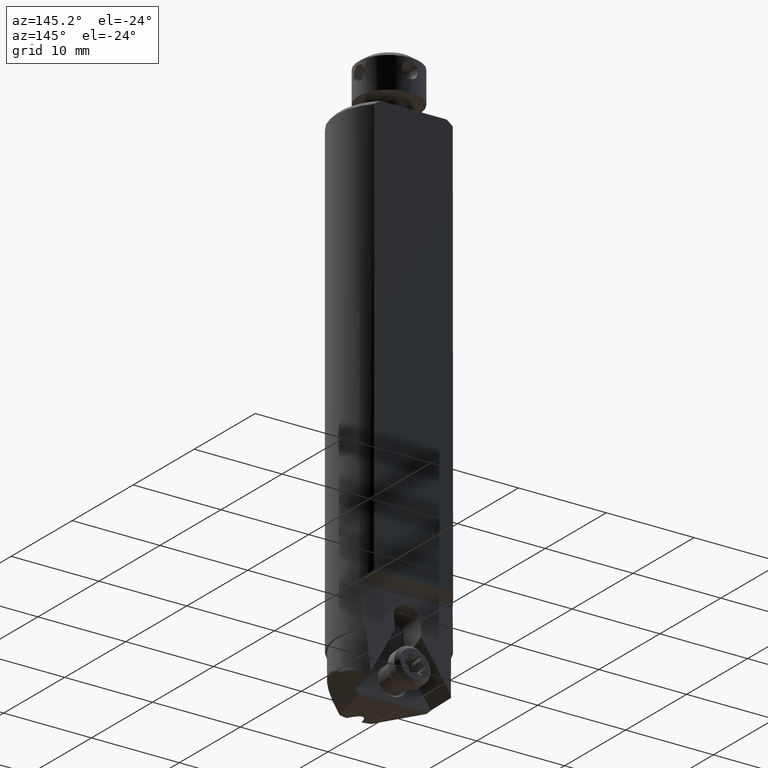
[diagram: clean part render]
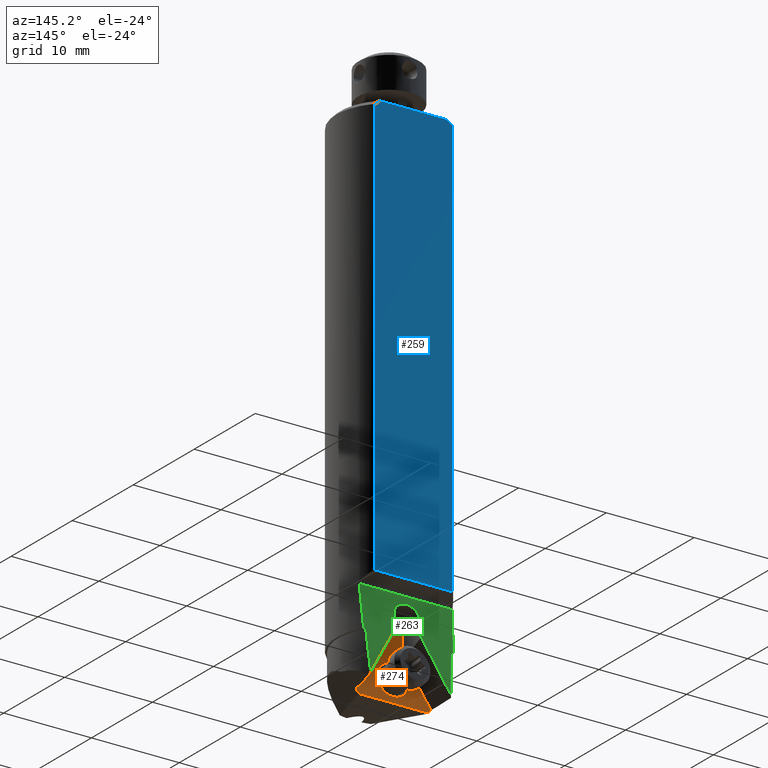
[diagram: same view with three faces highlighted in distinct colors, each labeled with its STEP entity id]
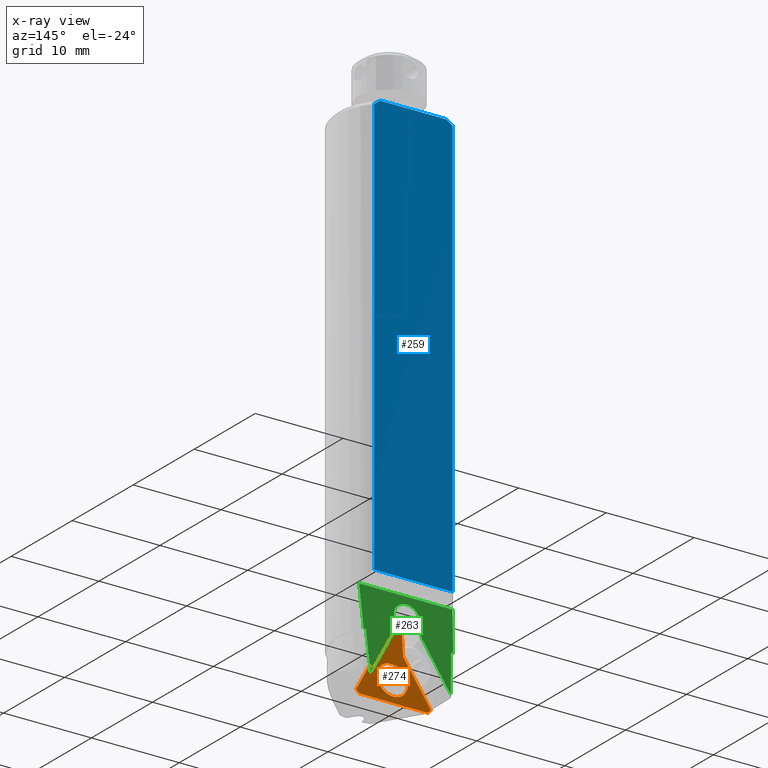
[diagram: x-ray of the same camera — body ghosted, the three highlighted faces saturated]
A machine part, auxiliary view with three faces highlighted in distinct colors.
The next image is the same camera in x-ray (body ghosted, the three faces saturated) — at least one of them is partly hidden behind the body in this view.
Their STEP definitions:

[orange] entity #274 — the highlighted planar face has unit normal (0, 0.9962, 0.0872).
#274=ADVANCED_FACE('',(#376,#377),#360,.T.);
#360=PLANE('',#1723);
#376=FACE_BOUND('',#403,.T.);
#377=FACE_BOUND('',#404,.T.);
#403=EDGE_LOOP('',(#780,#781,#782,#783,#784,#785,#786,#787));
#404=EDGE_LOOP('',(#788,#789));
#516=LINE('',#2614,#612);
#517=LINE('',#2619,#613);
#518=LINE('',#2621,#614);
#519=LINE('',#2623,#615);
#520=LINE('',#2625,#616);
#521=LINE('',#2627,#617);
#522=LINE('',#2629,#618);
#612=VECTOR('',#2009,1.);
#613=VECTOR('',#2012,1.);
#614=VECTOR('',#2013,1.);
#615=VECTOR('',#2014,1.);
#616=VECTOR('',#2015,1.);
#617=VECTOR('',#2016,1.);
#618=VECTOR('',#2017,1.);
#780=ORIENTED_EDGE('',*,*,#1356,.T.);
#781=ORIENTED_EDGE('',*,*,#1357,.F.);
#782=ORIENTED_EDGE('',*,*,#1358,.T.);
#783=ORIENTED_EDGE('',*,*,#1359,.F.);
#784=ORIENTED_EDGE('',*,*,#1360,.T.);
#785=ORIENTED_EDGE('',*,*,#1361,.T.);
#786=ORIENTED_EDGE('',*,*,#1362,.T.);
#787=ORIENTED_EDGE('',*,*,#1363,.F.);
#788=ORIENTED_EDGE('',*,*,#1355,.F.);
#789=ORIENTED_EDGE('',*,*,#1364,.F.);
#1192=VERTEX_POINT('',#2609);
#1193=VERTEX_POINT('',#2611);
#1194=VERTEX_POINT('',#2615);
#1195=VERTEX_POINT('',#2616);
#1196=VERTEX_POINT('',#2618);
#1197=VERTEX_POINT('',#2620);
#1198=VERTEX_POINT('',#2622);
#1199=VERTEX_POINT('',#2624);
#1200=VERTEX_POINT('',#2626);
#1201=VERTEX_POINT('',#2628);
#1355=EDGE_CURVE('',#1193,#1192,#1535,.T.);
#1356=EDGE_CURVE('',#1194,#1195,#516,.T.);
#1357=EDGE_CURVE('',#1196,#1195,#1536,.T.);
#1358=EDGE_CURVE('',#1196,#1197,#517,.T.);
#1359=EDGE_CURVE('',#1198,#1197,#518,.T.);
#1360=EDGE_CURVE('',#1198,#1199,#519,.T.);
#1361=EDGE_CURVE('',#1199,#1200,#520,.T.);
#1362=EDGE_CURVE('',#1200,#1201,#521,.T.);
#1363=EDGE_CURVE('',#1194,#1201,#522,.T.);
#1364=EDGE_CURVE('',#1192,#1193,#1537,.T.);
#1535=CIRCLE('',#1719,1.750000000004);
#1536=CIRCLE('',#1721,1.399999999996);
#1537=CIRCLE('',#1722,1.750000000004);
#1719=AXIS2_PLACEMENT_3D('',#2612,#2005,#2006);
#1721=AXIS2_PLACEMENT_3D('',#2617,#2010,#2011);
#1722=AXIS2_PLACEMENT_3D('',#2630,#2018,#2019);
#1723=AXIS2_PLACEMENT_3D('',#2631,#2020,#2021);
#2005=DIRECTION('',(0.,0.996194698091544,0.0871557427499638));
#2006=DIRECTION('',(0.,-0.0871557427499638,0.996194698091546));
#2009=DIRECTION('',(-6.17648606159406E-13,-0.0871557427469308,0.996194698091809));
#2010=DIRECTION('',(0.,-0.996194698092414,-0.0871557427400212));
#2011=DIRECTION('',(1.,3.72094313447472E-13,-4.25255069254958E-12));
#2012=DIRECTION('',(5.40968392206515E-13,0.0871557427227124,-0.996194698093928));
#2013=DIRECTION('',(-0.499999999998817,-0.0754790873049225,0.862729915663529));
#2014=DIRECTION('',(-0.705757556810199,0.0617457855328199,-0.705757556795699));
#2015=DIRECTION('',(-1.,0.,0.));
#2016=DIRECTION('',(-0.705757556812686,-0.0617457854210988,0.705757556802986));
#2017=DIRECTION('',(-0.500000000000173,0.0754790873059459,-0.862729915662653));
#2018=DIRECTION('',(0.,0.996194698091544,0.0871557427499638));
#2019=DIRECTION('',(0.,0.0871557427499638,-0.996194698091546));
#2020=DIRECTION('',(0.,0.996194698091747,0.0871557427476441));
#2021=DIRECTION('',(1.,0.,0.));
#2609=CARTESIAN_POINT('',(0.,0.7079039266518,-58.85757781715));
#2611=CARTESIAN_POINT('',(0.,0.4028588270262,-55.37089637382));
#2612=CARTESIAN_POINT('',(0.,0.555381376839,-57.11423709549));
#2614=CARTESIAN_POINT('',(-1.399999999999,0.3045793339473,-54.24755662761));
#2615=CARTESIAN_POINT('',(-1.399999999999,0.3045793339473,-54.24755662761));
#2616=CARTESIAN_POINT('',(-1.399999999996,0.1021715145569,-51.93402466542));
#2617=CARTESIAN_POINT('',(0.,0.1021715145563,-51.93402466541));
#2618=CARTESIAN_POINT('',(1.399999999999,0.1021715145569,-51.93402466542));
#2619=CARTESIAN_POINT('',(1.399999999999,0.1021715145569,-51.93402466542));
#2620=CARTESIAN_POINT('',(1.4,0.3045793338955,-54.24755662762));
#2621=CARTESIAN_POINT('',(4.26711323372,0.7373935140587,-59.19464534428));
#2622=CARTESIAN_POINT('',(4.26711323365155,0.737393514004378,-59.1946453443407));
#2623=CARTESIAN_POINT('',(4.26711323372,0.7373935140587,-59.19464534428));
#2624=CARTESIAN_POINT('',(3.9,0.7695117602989,-59.56175857799));
#2625=CARTESIAN_POINT('',(3.9,0.7695117602989,-59.56175857799));
#2626=CARTESIAN_POINT('',(-3.9,0.7695117602989,-59.56175857799));
#2627=CARTESIAN_POINT('',(-3.9,0.7695117602989,-59.56175857799));
#2628=CARTESIAN_POINT('',(-4.26711323372529,0.737393514114638,-59.1946453442684));
#2629=CARTESIAN_POINT('',(-1.399999999999,0.3045793339473,-54.24755662761));
#2630=CARTESIAN_POINT('',(0.,0.555381376839,-57.11423709549));
#2631=CARTESIAN_POINT('',(0.,0.3748068163156,-55.0502604241));

[blue] entity #259 — the highlighted planar face has unit normal (0, 1, 0).
#128=FACE_OUTER_BOUND('',#388,.T.);
#215=B_SPLINE_CURVE_WITH_KNOTS('',3,(#2394,#2395,#2396,#2397,#2398,#2399),
 .UNSPECIFIED.,.F.,.F.,(4,1,1,4),(0.,0.3333333333333,0.6666666666667,1.),
 .UNSPECIFIED.);
#216=B_SPLINE_CURVE_WITH_KNOTS('',3,(#2400,#2401,#2402,#2403,#2404,#2405),
 .UNSPECIFIED.,.F.,.F.,(4,1,1,4),(0.,0.3333333333333,0.6666666666667,1.),
 .UNSPECIFIED.);
#259=ADVANCED_FACE('',(#128),#352,.T.);
#352=PLANE('',#1685);
#388=EDGE_LOOP('',(#683,#684,#685,#686,#687,#688));
#485=LINE('',#2383,#581);
#486=LINE('',#2391,#582);
#487=LINE('',#2407,#583);
#488=LINE('',#2409,#584);
#581=VECTOR('',#1898,1.);
#582=VECTOR('',#1907,1.);
#583=VECTOR('',#1908,1.);
#584=VECTOR('',#1909,1.);
#683=ORIENTED_EDGE('',*,*,#1293,.T.);
#684=ORIENTED_EDGE('',*,*,#1294,.T.);
#685=ORIENTED_EDGE('',*,*,#1289,.F.);
#686=ORIENTED_EDGE('',*,*,#1295,.T.);
#687=ORIENTED_EDGE('',*,*,#1296,.T.);
#688=ORIENTED_EDGE('',*,*,#1297,.T.);
#1144=VERTEX_POINT('',#2380);
#1145=VERTEX_POINT('',#2382);
#1149=VERTEX_POINT('',#2392);
#1150=VERTEX_POINT('',#2393);
#1151=VERTEX_POINT('',#2406);
#1152=VERTEX_POINT('',#2408);
#1289=EDGE_CURVE('',#1145,#1144,#485,.T.);
#1293=EDGE_CURVE('',#1149,#1150,#486,.T.);
#1294=EDGE_CURVE('',#1150,#1144,#215,.T.);
#1295=EDGE_CURVE('',#1145,#1151,#216,.T.);
#1296=EDGE_CURVE('',#1151,#1152,#487,.T.);
#1297=EDGE_CURVE('',#1152,#1149,#488,.T.);
#1685=AXIS2_PLACEMENT_3D('',#2410,#1910,#1911);
#1898=DIRECTION('',(-1.,0.,0.));
#1907=DIRECTION('',(0.,-3.108511716886E-14,1.));
#1908=DIRECTION('',(0.,2.493886871726E-14,-1.));
#1909=DIRECTION('',(-1.,0.,0.));
#1910=DIRECTION('',(0.,1.,0.));
#1911=DIRECTION('',(0.,0.,1.));
#2380=CARTESIAN_POINT('',(-3.774917217635,4.,4.144832625267E-14));
#2382=CARTESIAN_POINT('',(3.774917217635,4.,0.));
#2383=CARTESIAN_POINT('',(3.774917217635,4.,0.));
#2391=CARTESIAN_POINT('',(-4.472135955,4.000000000001,-48.1874439439));
#2392=CARTESIAN_POINT('',(-4.4721359549973,4.000000000001,-48.1874439439049));
#2393=CARTESIAN_POINT('',(-4.472135955,4.,-0.5));
#2394=CARTESIAN_POINT('',(-4.472135955,4.,-0.5));
#2395=CARTESIAN_POINT('',(-4.393661086177,4.,-0.4415082862622));
#2396=CARTESIAN_POINT('',(-4.23744257558,4.,-0.3264448948321));
#2397=CARTESIAN_POINT('',(-4.006946224232,4.,-0.1609865209763));
#2398=CARTESIAN_POINT('',(-3.852262418119,4.,-0.05308576891074));
#2399=CARTESIAN_POINT('',(-3.774917217635,4.,4.144832625267E-14));
#2400=CARTESIAN_POINT('',(3.774917217635,4.,0.));
#2401=CARTESIAN_POINT('',(3.852399976638,4.,-0.05318018200546));
#2402=CARTESIAN_POINT('',(4.007264980549,4.,-0.161211095624));
#2403=CARTESIAN_POINT('',(4.237799465785,4.,-0.3267053958939));
#2404=CARTESIAN_POINT('',(4.393813119612,4.,-0.4416216052942));
#2405=CARTESIAN_POINT('',(4.472135955,4.,-0.5));
#2406=CARTESIAN_POINT('',(4.472135955,4.,-0.5));
#2407=CARTESIAN_POINT('',(4.472135955,4.,-0.5));
#2408=CARTESIAN_POINT('',(4.4721359549973,4.0000000000011,-48.1874439439048));
#2409=CARTESIAN_POINT('',(4.472135955,4.000000000001,-48.1874439439));
#2410=CARTESIAN_POINT('',(0.,4.,-24.09372197195));

[green] entity #263 — the highlighted planar face has unit normal (0, 0.9962, 0.0872).
#132=FACE_OUTER_BOUND('',#392,.T.);
#218=B_SPLINE_CURVE_WITH_KNOTS('',3,(#2434,#2435,#2436,#2437),
 .UNSPECIFIED.,.F.,.F.,(4,4),(0.,1.),.UNSPECIFIED.);
#219=B_SPLINE_CURVE_WITH_KNOTS('',3,(#2443,#2444,#2445,#2446),
 .UNSPECIFIED.,.F.,.F.,(4,4),(0.,1.),.UNSPECIFIED.);
#221=B_SPLINE_CURVE_WITH_KNOTS('',3,(#2473,#2474,#2475,#2476),
 .UNSPECIFIED.,.F.,.F.,(4,4),(0.,1.),.UNSPECIFIED.);
#222=B_SPLINE_CURVE_WITH_KNOTS('',3,(#2481,#2482,#2483,#2484),
 .UNSPECIFIED.,.F.,.F.,(4,4),(0.,1.),.UNSPECIFIED.);
#263=ADVANCED_FACE('',(#132),#354,.T.);
#354=PLANE('',#1696);
#392=EDGE_LOOP('',(#709,#710,#711,#712,#713,#714,#715,#716,#717,#718,#719,
#720));
#490=LINE('',#2462,#586);
#491=LINE('',#2464,#587);
#492=LINE('',#2469,#588);
#493=LINE('',#2471,#589);
#494=LINE('',#2478,#590);
#495=LINE('',#2479,#591);
#496=LINE('',#2486,#592);
#586=VECTOR('',#1929,1.);
#587=VECTOR('',#1932,1.);
#588=VECTOR('',#1935,1.);
#589=VECTOR('',#1936,1.);
#590=VECTOR('',#1937,1.);
#591=VECTOR('',#1938,1.);
#592=VECTOR('',#1939,1.);
#709=ORIENTED_EDGE('',*,*,#1310,.T.);
#710=ORIENTED_EDGE('',*,*,#1311,.F.);
#711=ORIENTED_EDGE('',*,*,#1312,.T.);
#712=ORIENTED_EDGE('',*,*,#1313,.F.);
#713=ORIENTED_EDGE('',*,*,#1314,.T.);
#714=ORIENTED_EDGE('',*,*,#1315,.T.);
#715=ORIENTED_EDGE('',*,*,#1304,.F.);
#716=ORIENTED_EDGE('',*,*,#1309,.F.);
#717=ORIENTED_EDGE('',*,*,#1307,.F.);
#718=ORIENTED_EDGE('',*,*,#1316,.T.);
#719=ORIENTED_EDGE('',*,*,#1317,.T.);
#720=ORIENTED_EDGE('',*,*,#1318,.F.);
#1156=VERTEX_POINT('',#2433);
#1157=VERTEX_POINT('',#2438);
#1159=VERTEX_POINT('',#2442);
#1160=VERTEX_POINT('',#2447);
#1161=VERTEX_POINT('',#2465);
#1162=VERTEX_POINT('',#2466);
#1163=VERTEX_POINT('',#2468);
#1164=VERTEX_POINT('',#2470);
#1165=VERTEX_POINT('',#2472);
#1166=VERTEX_POINT('',#2477);
#1167=VERTEX_POINT('',#2480);
#1168=VERTEX_POINT('',#2485);
#1304=EDGE_CURVE('',#1156,#1157,#218,.T.);
#1307=EDGE_CURVE('',#1159,#1160,#219,.T.);
#1309=EDGE_CURVE('',#1160,#1156,#490,.T.);
#1310=EDGE_CURVE('',#1161,#1162,#491,.T.);
#1311=EDGE_CURVE('',#1163,#1162,#1529,.T.);
#1312=EDGE_CURVE('',#1163,#1164,#492,.T.);
#1313=EDGE_CURVE('',#1165,#1164,#493,.T.);
#1314=EDGE_CURVE('',#1165,#1166,#221,.T.);
#1315=EDGE_CURVE('',#1166,#1157,#494,.T.);
#1316=EDGE_CURVE('',#1159,#1167,#495,.T.);
#1317=EDGE_CURVE('',#1167,#1168,#222,.T.);
#1318=EDGE_CURVE('',#1161,#1168,#496,.T.);
#1529=CIRCLE('',#1695,1.5);
#1695=AXIS2_PLACEMENT_3D('',#2467,#1933,#1934);
#1696=AXIS2_PLACEMENT_3D('',#2487,#1940,#1941);
#1929=DIRECTION('',(-1.,0.,0.));
#1932=DIRECTION('',(7.72123282740378E-13,-0.0871557427473575,0.996194698091772));
#1933=DIRECTION('',(0.,0.996194698091544,0.0871557427499638));
#1934=DIRECTION('',(-1.,2.91722664543433E-13,-3.33529500314474E-12));
#1935=DIRECTION('',(7.73826182829378E-13,0.0871557427473575,-0.996194698091772));
#1936=DIRECTION('',(0.499999999999816,-0.0754790873051625,0.862729915662928));
#1937=DIRECTION('',(-1.,4.41396943827E-13,6.344145904497E-12));
#1938=DIRECTION('',(-1.,4.114717272961E-13,-6.314220687962E-12));
#1939=DIRECTION('',(0.499999999999699,0.0754790873051299,-0.862729915662999));
#1940=DIRECTION('',(0.,0.996194698091748,0.0871557427476342));
#1941=DIRECTION('',(0.,-0.0871557427476342,0.996194698091748));
#2433=CARTESIAN_POINT('',(-5.32357549204777,2.7675881161169,-49.35558168237));
#2434=CARTESIAN_POINT('',(-5.323575492048,2.767588116117,-49.35558168237));
#2435=CARTESIAN_POINT('',(-5.252209152778,2.90486435765,-50.92465630302));
#2436=CARTESIAN_POINT('',(-5.174141059953,3.042111463192,-52.49339789777));
#2437=CARTESIAN_POINT('',(-5.0884075111,3.179325243031,-54.06175857799));
#2438=CARTESIAN_POINT('',(-5.088407511101,3.179325243031,-54.06175857799));
#2442=CARTESIAN_POINT('',(5.088407511101,3.179325243031,-54.06175857799));
#2443=CARTESIAN_POINT('',(5.088407511101,3.179325243031,-54.06175857799));
#2444=CARTESIAN_POINT('',(5.174141059953,3.042111463192,-52.49339789777));
#2445=CARTESIAN_POINT('',(5.252209152778,2.90486435765,-50.92465630302));
#2446=CARTESIAN_POINT('',(5.323575492047,2.767588116117,-49.35558168237));
#2447=CARTESIAN_POINT('',(5.32357549204727,2.7675881161169,-49.35558168237));
#2462=CARTESIAN_POINT('',(5.323575492048,2.767588116117,-49.35558168237));
#2464=CARTESIAN_POINT('',(1.499999999999,3.107585218948,-53.24176635051));
#2465=CARTESIAN_POINT('',(1.499999999999,3.107585218948,-53.24176635051));
#2466=CARTESIAN_POINT('',(1.5,2.971212245063,-51.68301612631));
#2467=CARTESIAN_POINT('',(0.,2.971212245063,-51.6830161263));
#2468=CARTESIAN_POINT('',(-1.5,2.971212245062,-51.68301612631));
#2469=CARTESIAN_POINT('',(-1.5,2.971212245062,-51.68301612631));
#2470=CARTESIAN_POINT('',(-1.499999999999,3.107585218948,-53.24176635051));
#2471=CARTESIAN_POINT('',(-4.570280618861,3.571069176713,-58.53941222926));
#2472=CARTESIAN_POINT('',(-4.570280618861,3.571069176713,-58.53941222926));
#2473=CARTESIAN_POINT('',(-4.570280618861,3.571069176713,-58.53941222926));
#2474=CARTESIAN_POINT('',(-4.672276665426,3.440533885529,-57.04738702368));
#2475=CARTESIAN_POINT('',(-4.765356599325,3.30994994118,-55.55480570987));
#2476=CARTESIAN_POINT('',(-4.850968047619,3.179325243031,-54.06175857799));
#2477=CARTESIAN_POINT('',(-4.850968047619,3.179325243031,-54.06175857799));
#2478=CARTESIAN_POINT('',(-4.850968047619,3.179325243031,-54.06175857799));
#2479=CARTESIAN_POINT('',(5.088407511101,3.179325243031,-54.06175857799));
#2480=CARTESIAN_POINT('',(4.850968047619,3.179325243031,-54.06175857799));
#2481=CARTESIAN_POINT('',(4.850968047619,3.179325243032,-54.061758578));
#2482=CARTESIAN_POINT('',(4.765356599324,3.309949941181,-55.55480570987));
#2483=CARTESIAN_POINT('',(4.672276665426,3.44053388553,-57.04738702368));
#2484=CARTESIAN_POINT('',(4.570280618861,3.571069176713,-58.53941222926));
#2485=CARTESIAN_POINT('',(4.570280618861,3.571069176713,-58.53941222926));
#2486=CARTESIAN_POINT('',(1.499999999999,3.107585218948,-53.24176635051));
#2487=CARTESIAN_POINT('',(0.,3.169328646415,-53.94749695581));